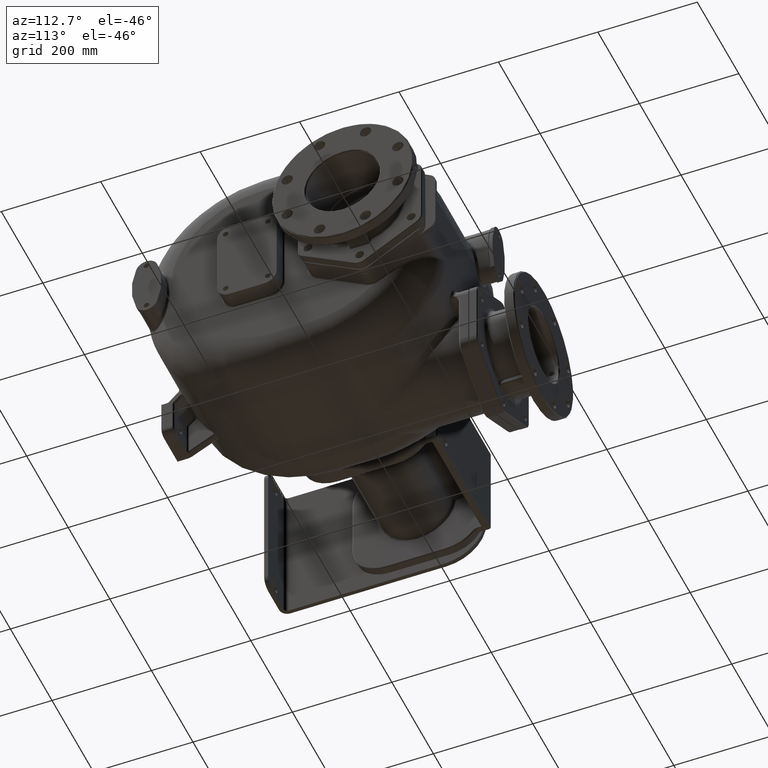
[diagram: clean part render]
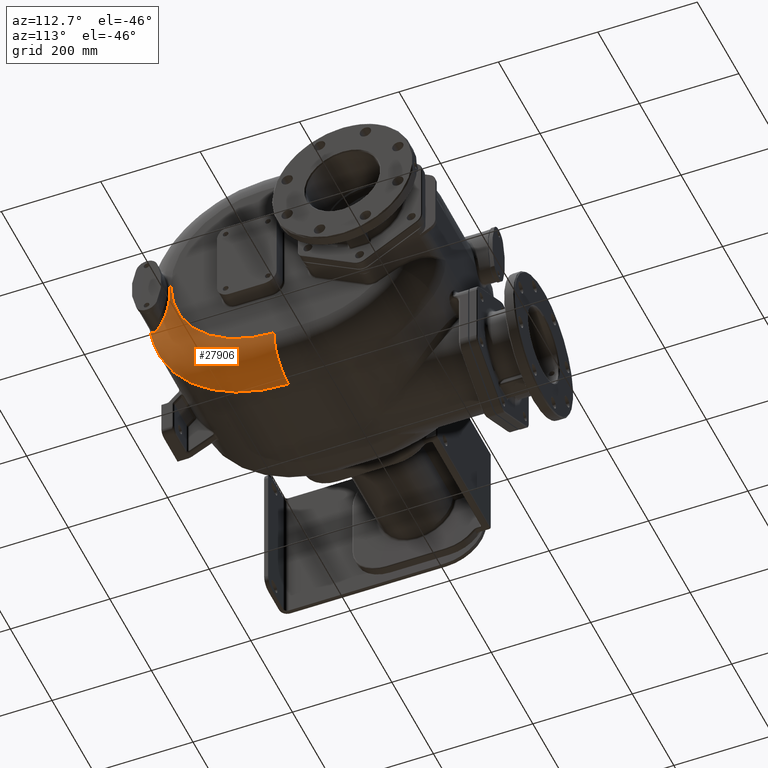
[diagram: same view with one face highlighted and labeled with its STEP entity id]
A machine part, auxiliary view. The second image highlights one B-rep face of the part: STEP entity #27906.
In plain terms, the highlighted toroidal blend (fillet) surface has major radius 207 mm and minor (blend) radius 70 mm.
Its self-contained STEP definition (entity closure, byte-faithful):
#1087=CARTESIAN_POINT('',(1.2E2,2.93E2,-1.3E1));
#1088=DIRECTION('',(1.E0,0.E0,0.E0));
#1089=DIRECTION('',(0.E0,-1.E0,0.E0));
#1090=AXIS2_PLACEMENT_3D('',#1087,#1088,#1089);
#3254=CARTESIAN_POINT('',(1.436302674868E2,2.010910185387E1,-1.3E1));
#3255=CARTESIAN_POINT('',(1.434774850535E2,2.005430937251E1,-1.366220013647E1));
#3256=CARTESIAN_POINT('',(1.431825362065E2,1.995454968476E1,-1.498000676323E1));
#3257=CARTESIAN_POINT('',(1.427718428452E2,1.983316179506E1,-1.693759887206E1));
#3258=CARTESIAN_POINT('',(1.423935799865E2,1.973907631960E1,-1.887212816799E1));
#3259=CARTESIAN_POINT('',(1.420480140452E2,1.967116820238E1,-2.078093430659E1));
#3260=CARTESIAN_POINT('',(1.417354892376E2,1.962833029918E1,-2.266116148232E1));
#3261=CARTESIAN_POINT('',(1.414560493564E2,1.960933981310E1,-2.450988102760E1));
#3262=CARTESIAN_POINT('',(1.412095348435E2,1.961295038040E1,-2.632515984223E1));
#3263=CARTESIAN_POINT('',(1.409955728968E2,1.963792320956E1,-2.810591690151E1));
#3264=CARTESIAN_POINT('',(1.408135763286E2,1.968298093355E1,-2.985079668782E1));
#3265=CARTESIAN_POINT('',(1.406627491059E2,1.974699251748E1,-3.156095532692E1));
#3266=CARTESIAN_POINT('',(1.405423228502E2,1.982896504002E1,-3.323785880910E1));
#3267=CARTESIAN_POINT('',(1.404514990176E2,1.992800933776E1,-3.488312068189E1));
#3268=CARTESIAN_POINT('',(1.403893914088E2,2.004336117405E1,-3.649894776881E1));
#3269=CARTESIAN_POINT('',(1.403553411225E2,2.017444379586E1,-3.808764115690E1));
#3270=CARTESIAN_POINT('',(1.403487197975E2,2.032076303327E1,-3.965118588585E1));
#3271=CARTESIAN_POINT('',(1.403689258024E2,2.048189644560E1,-4.119130408119E1));
#3272=CARTESIAN_POINT('',(1.404155267991E2,2.065756839790E1,-4.270984505326E1));
#3273=CARTESIAN_POINT('',(1.404880140612E2,2.084755266888E1,-4.420858582751E1));
#3274=CARTESIAN_POINT('',(1.405860575922E2,2.105176072759E1,-4.568935961185E1));
#3275=CARTESIAN_POINT('',(1.407094408666E2,2.127020102824E1,-4.715387870620E1));
#3276=CARTESIAN_POINT('',(1.408578275532E2,2.150285293162E1,-4.860337527423E1));
#3277=CARTESIAN_POINT('',(1.410311048675E2,2.174984325472E1,-5.003921088386E1));
#3278=CARTESIAN_POINT('',(1.412290961446E2,2.201128674224E1,-5.146235185554E1));
#3279=CARTESIAN_POINT('',(1.414515955290E2,2.228730171473E1,-5.287349863229E1));
#3280=CARTESIAN_POINT('',(1.416985613134E2,2.257811802714E1,-5.427341460296E1));
#3281=CARTESIAN_POINT('',(1.419697538119E2,2.288385255599E1,-5.566224239431E1));
#3282=CARTESIAN_POINT('',(1.422649904259E2,2.320467344718E1,-5.704011873126E1));
#3283=CARTESIAN_POINT('',(1.425840888301E2,2.354075408442E1,-5.840699369502E1));
#3284=CARTESIAN_POINT('',(1.429266641897E2,2.389213276425E1,-5.976227508438E1));
#3285=CARTESIAN_POINT('',(1.432923959277E2,2.425891060931E1,-6.110551274163E1));
#3286=CARTESIAN_POINT('',(1.436808171377E2,2.464107772312E1,-6.243583439287E1));
#3287=CARTESIAN_POINT('',(1.440913300373E2,2.503853459744E1,-6.375212962854E1));
#3288=CARTESIAN_POINT('',(1.445233290144E2,2.545119373283E1,-6.505338282864E1));
#3289=CARTESIAN_POINT('',(1.449760297220E2,2.587881128043E1,-6.633815952179E1));
#3290=CARTESIAN_POINT('',(1.454485727397E2,2.632110111494E1,-6.760506358313E1));
#3291=CARTESIAN_POINT('',(1.459400257101E2,2.677772171144E1,-6.885268240407E1));
#3292=CARTESIAN_POINT('',(1.464493537354E2,2.724822311748E1,-7.007942798012E1));
#3293=CARTESIAN_POINT('',(1.469754384533E2,2.773210757139E1,-7.128382846454E1));
#3294=CARTESIAN_POINT('',(1.475171253484E2,2.822882256818E1,-7.246441996229E1));
#3295=CARTESIAN_POINT('',(1.480732247831E2,2.873776462988E1,-7.361977868036E1));
#3296=CARTESIAN_POINT('',(1.486424525525E2,2.925826208642E1,-7.474858136281E1));
#3297=CARTESIAN_POINT('',(1.492236009880E2,2.978965841172E1,-7.584963861356E1));
#3298=CARTESIAN_POINT('',(1.498154181508E2,3.033124979881E1,-7.692185502938E1));
#3299=CARTESIAN_POINT('',(1.504166175639E2,3.088229332147E1,-7.796426119160E1));
#3300=CARTESIAN_POINT('',(1.510260606654E2,3.144211730815E1,-7.897608532821E1));
#3301=CARTESIAN_POINT('',(1.516425300229E2,3.200998211983E1,-7.995662812854E1));
#3302=CARTESIAN_POINT('',(1.522648840287E2,3.258518253080E1,-8.090536606344E1));
#3303=CARTESIAN_POINT('',(1.528921038113E2,3.316707642804E1,-8.182193052124E1));
#3304=CARTESIAN_POINT('',(1.535231017265E2,3.375496275686E1,-8.270602491109E1));
#3305=CARTESIAN_POINT('',(1.541569416224E2,3.434823036648E1,-8.355752502583E1));
#3306=CARTESIAN_POINT('',(1.547927438420E2,3.494629158608E1,-8.437639275728E1));
#3307=CARTESIAN_POINT('',(1.554296080860E2,3.554853796984E1,-8.516267803704E1));
#3308=CARTESIAN_POINT('',(1.560667917329E2,3.615445656001E1,-8.591654095740E1));
#3309=CARTESIAN_POINT('',(1.567035634E2,3.676353298330E1,-8.663819553894E1));
#3310=CARTESIAN_POINT('',(1.573392173551E2,3.737526762586E1,-8.732793718380E1));
#3311=CARTESIAN_POINT('',(1.579731633683E2,3.798922643833E1,-8.798610163125E1));
#3312=CARTESIAN_POINT('',(1.586048167459E2,3.860497705131E1,-8.861307629853E1));
#3313=CARTESIAN_POINT('',(1.592336314502E2,3.922210936668E1,-8.920929427999E1));
#3314=CARTESIAN_POINT('',(1.598591312617E2,3.984024685438E1,-8.977518791346E1));
#3315=CARTESIAN_POINT('',(1.604808559240E2,4.045902749877E1,-9.031124219601E1));
#3316=CARTESIAN_POINT('',(1.610983733216E2,4.107809867245E1,-9.081794686399E1));
#3317=CARTESIAN_POINT('',(1.617112937749E2,4.169712485870E1,-9.129578174706E1));
#3318=CARTESIAN_POINT('',(1.623192528798E2,4.231579432318E1,-9.174527339677E1));
#3319=CARTESIAN_POINT('',(1.629218948091E2,4.293378321734E1,-9.216692017398E1));
#3320=CARTESIAN_POINT('',(1.635188958478E2,4.355078310876E1,-9.256122041189E1));
#3321=CARTESIAN_POINT('',(1.641099597727E2,4.416650961675E1,-9.292870486295E1));
#3322=CARTESIAN_POINT('',(1.646947924708E2,4.478065934829E1,-9.326986724422E1));
#3323=CARTESIAN_POINT('',(1.652731346525E2,4.539295418955E1,-9.358521566449E1));
#3324=CARTESIAN_POINT('',(1.658447485281E2,4.600313057963E1,-9.387526780821E1));
#3325=CARTESIAN_POINT('',(1.664093755867E2,4.661088369059E1,-9.414049906933E1));
#3326=CARTESIAN_POINT('',(1.669667938533E2,4.721593949899E1,-9.438140718207E1));
#3327=CARTESIAN_POINT('',(1.675168109958E2,4.781804415433E1,-9.459849044408E1));
#3328=CARTESIAN_POINT('',(1.680592591064E2,4.841695698371E1,-9.479223758398E1));
#3329=CARTESIAN_POINT('',(1.685940185990E2,4.901248386920E1,-9.496314885163E1));
#3330=CARTESIAN_POINT('',(1.691209329544E2,4.960437758898E1,-9.511168953345E1));
#3331=CARTESIAN_POINT('',(1.696398067770E2,5.019233691300E1,-9.523831154712E1));
#3332=CARTESIAN_POINT('',(1.701504801106E2,5.077608942831E1,-9.534347723230E1));
#3333=CARTESIAN_POINT('',(1.706528929816E2,5.135546664387E1,-9.542765954043E1));
#3334=CARTESIAN_POINT('',(1.711470510565E2,5.193037230188E1,-9.549133076923E1));
#3335=CARTESIAN_POINT('',(1.716329888008E2,5.250073603613E1,-9.553492987584E1));
#3336=CARTESIAN_POINT('',(1.721107231778E2,5.306646680016E1,-9.555888241510E1));
#3337=CARTESIAN_POINT('',(1.724237839111E2,5.344050499518E1,-9.556202232890E1));
#3338=CARTESIAN_POINT('',(1.725789568150E2,5.362672378307E1,-9.556044758948E1));
#3340=CARTESIAN_POINT('',(1.725789568150E2,5.362672378307E1,-9.556044758948E1));
#3341=CARTESIAN_POINT('',(1.727350139299E2,5.381400456774E1,-9.555886349032E1));
#3342=CARTESIAN_POINT('',(1.730446722469E2,5.418731818376E1,-9.554939675599E1));
#3343=CARTESIAN_POINT('',(1.735018132117E2,5.474349742809E1,-9.551660725324E1));
#3344=CARTESIAN_POINT('',(1.739515268109E2,5.529569494591E1,-9.546550867055E1));
#3345=CARTESIAN_POINT('',(1.743937862965E2,5.584377782499E1,-9.539636006013E1));
#3346=CARTESIAN_POINT('',(1.748285745199E2,5.638763666371E1,-9.530945669196E1));
#3347=CARTESIAN_POINT('',(1.752558841488E2,5.692715750627E1,-9.520504673180E1));
#3348=CARTESIAN_POINT('',(1.756757755286E2,5.746230972161E1,-9.508335276056E1));
#3349=CARTESIAN_POINT('',(1.760884359438E2,5.799324212627E1,-9.494457605348E1));
#3350=CARTESIAN_POINT('',(1.764940445325E2,5.852008186013E1,-9.478882634824E1));
#3351=CARTESIAN_POINT('',(1.768927622035E2,5.904294761147E1,-9.461620682175E1));
#3352=CARTESIAN_POINT('',(1.772847254014E2,5.956194100346E1,-9.442682164268E1));
#3353=CARTESIAN_POINT('',(1.776700685394E2,6.007714562496E1,-9.422068414382E1));
#3354=CARTESIAN_POINT('',(1.780489585343E2,6.058871194890E1,-9.399780283957E1));
#3355=CARTESIAN_POINT('',(1.784215753429E2,6.109681769564E1,-9.375813775507E1));
#3356=CARTESIAN_POINT('',(1.787880777373E2,6.160160142933E1,-9.350156245817E1));
#3357=CARTESIAN_POINT('',(1.791486434146E2,6.210325956627E1,-9.322795620793E1));
#3358=CARTESIAN_POINT('',(1.795034377932E2,6.260197425415E1,-9.293713350050E1));
#3359=CARTESIAN_POINT('',(1.798526017492E2,6.309788854100E1,-9.262883836702E1));
#3360=CARTESIAN_POINT('',(1.801963231266E2,6.359124756215E1,-9.230278921470E1));
#3361=CARTESIAN_POINT('',(1.805347596996E2,6.408225185796E1,-9.195862520124E1));
#3362=CARTESIAN_POINT('',(1.808680422643E2,6.457106703072E1,-9.159593068811E1));
#3363=CARTESIAN_POINT('',(1.811963166926E2,6.505791523135E1,-9.121427223013E1));
#3364=CARTESIAN_POINT('',(1.815196698463E2,6.554292537453E1,-9.081316543099E1));
#3365=CARTESIAN_POINT('',(1.818382272164E2,6.602629488697E1,-9.039201272465E1));
#3366=CARTESIAN_POINT('',(1.821522199922E2,6.650841623172E1,-8.995003105512E1));
#3367=CARTESIAN_POINT('',(1.824618521766E2,6.698964649979E1,-8.948628570358E1));
#3368=CARTESIAN_POINT('',(1.827670024875E2,6.746985908723E1,-8.900024628012E1));
#3369=CARTESIAN_POINT('',(1.830672650614E2,6.794848018076E1,-8.849189814029E1));
#3370=CARTESIAN_POINT('',(1.833622988575E2,6.842499915872E1,-8.796116139715E1));
#3371=CARTESIAN_POINT('',(1.836517617436E2,6.889889200780E1,-8.740807159432E1));
#3372=CARTESIAN_POINT('',(1.839353409692E2,6.936966653050E1,-8.683271632691E1));
#3373=CARTESIAN_POINT('',(1.842127115066E2,6.983676972728E1,-8.623528977257E1));
#3374=CARTESIAN_POINT('',(1.844840742461E2,7.030053568280E1,-8.561490618725E1));
#3375=CARTESIAN_POINT('',(1.847496074721E2,7.076129111354E1,-8.497057074342E1));
#3376=CARTESIAN_POINT('',(1.850094128822E2,7.121924157942E1,-8.430129503497E1));
#3377=CARTESIAN_POINT('',(1.852634922388E2,7.167443923669E1,-8.360625328288E1));
#3378=CARTESIAN_POINT('',(1.855118150402E2,7.212689042691E1,-8.288463918553E1));
#3379=CARTESIAN_POINT('',(1.857543339274E2,7.257656624395E1,-8.213558923808E1));
#3380=CARTESIAN_POINT('',(1.859910257997E2,7.302349329395E1,-8.135808974340E1));
#3381=CARTESIAN_POINT('',(1.862218258944E2,7.346763495344E1,-8.055118848731E1));
#3382=CARTESIAN_POINT('',(1.864466444004E2,7.390889506211E1,-7.971389844435E1));
#3383=CARTESIAN_POINT('',(1.866653785050E2,7.434715298024E1,-7.884521341571E1));
#3384=CARTESIAN_POINT('',(1.868779042184E2,7.478225502135E1,-7.794419112414E1));
#3385=CARTESIAN_POINT('',(1.870840759417E2,7.521397276900E1,-7.700986568928E1));
#3386=CARTESIAN_POINT('',(1.872837404649E2,7.564204981646E1,-7.604128900352E1));
#3387=CARTESIAN_POINT('',(1.874767408712E2,7.606622108088E1,-7.503757905163E1));
#3388=CARTESIAN_POINT('',(1.876628935371E2,7.648610377101E1,-7.399789623548E1));
#3389=CARTESIAN_POINT('',(1.878420207092E2,7.690130052635E1,-7.292146111973E1));
#3390=CARTESIAN_POINT('',(1.880139573829E2,7.731142171129E1,-7.180756180990E1));
#3391=CARTESIAN_POINT('',(1.881785134371E2,7.771592113234E1,-7.065561427347E1));
#3392=CARTESIAN_POINT('',(1.883355288235E2,7.811428050712E1,-6.946510073636E1));
#3393=CARTESIAN_POINT('',(1.884848658402E2,7.850598121651E1,-6.823559489974E1));
#3394=CARTESIAN_POINT('',(1.886263739616E2,7.889033364932E1,-6.696687938788E1));
#3395=CARTESIAN_POINT('',(1.887599573953E2,7.926672987462E1,-6.565877998683E1));
#3396=CARTESIAN_POINT('',(1.888855463541E2,7.963452965930E1,-6.431126848743E1));
#3397=CARTESIAN_POINT('',(1.890030807167E2,7.999294841519E1,-6.292455993754E1));
#3398=CARTESIAN_POINT('',(1.891125708480E2,8.034132733879E1,-6.149888084092E1));
#3399=CARTESIAN_POINT('',(1.892140533832E2,8.067893148970E1,-6.003467911532E1));
#3400=CARTESIAN_POINT('',(1.893075983181E2,8.100494481433E1,-5.853262322726E1));
#3401=CARTESIAN_POINT('',(1.893933480928E2,8.131869513400E1,-5.699337997522E1));
#3402=CARTESIAN_POINT('',(1.894714713803E2,8.161940242989E1,-5.541788546274E1));
#3403=CARTESIAN_POINT('',(1.895421852645E2,8.190628955869E1,-5.380721592270E1));
#3404=CARTESIAN_POINT('',(1.896057672113E2,8.217870881695E1,-5.216246068246E1));
#3405=CARTESIAN_POINT('',(1.896625163282E2,8.243589011299E1,-5.048503360539E1));
#3406=CARTESIAN_POINT('',(1.897127797879E2,8.267714439532E1,-4.877641240225E1));
#3407=CARTESIAN_POINT('',(1.897569443447E2,8.290187385957E1,-4.703811698054E1));
#3408=CARTESIAN_POINT('',(1.897954145340E2,8.310940650193E1,-4.527179489779E1));
#3409=CARTESIAN_POINT('',(1.898286249935E2,8.329919609505E1,-4.347907374354E1));
#3410=CARTESIAN_POINT('',(1.898570198577E2,8.347071746132E1,-4.166179228230E1));
#3411=CARTESIAN_POINT('',(1.898810429383E2,8.362340535943E1,-3.982211289E1));
#3412=CARTESIAN_POINT('',(1.899011446719E2,8.375684305786E1,-3.796223362599E1));
#3413=CARTESIAN_POINT('',(1.899177660161E2,8.387063576649E1,-3.608400586239E1));
#3414=CARTESIAN_POINT('',(1.899313288404E2,8.396441737142E1,-3.418906898469E1));
#3415=CARTESIAN_POINT('',(1.899422292330E2,8.403791631493E1,-3.227911280355E1));
#3416=CARTESIAN_POINT('',(1.899508266109E2,8.409087143218E1,-3.035592554259E1));
#3417=CARTESIAN_POINT('',(1.899574412007E2,8.412310221532E1,-2.842116518467E1));
#3418=CARTESIAN_POINT('',(1.899623438743E2,8.413446352929E1,-2.647706810013E1));
#3419=CARTESIAN_POINT('',(1.899657453138E2,8.412473380818E1,-2.452914042585E1));
#3420=CARTESIAN_POINT('',(1.899678139783E2,8.409400193597E1,-2.258282638464E1));
#3421=CARTESIAN_POINT('',(1.899686619196E2,8.404237188600E1,-2.064244547391E1));
#3422=CARTESIAN_POINT('',(1.899683379483E2,8.396981962437E1,-1.871065333154E1));
#3423=CARTESIAN_POINT('',(1.899668341842E2,8.387652273391E1,-1.679054190466E1));
#3424=CARTESIAN_POINT('',(1.899640837075E2,8.376268493163E1,-1.488463106395E1));
#3425=CARTESIAN_POINT('',(1.899613408175E2,8.367340558825E1,-1.362643533314E1));
#3426=CARTESIAN_POINT('',(1.899597127545E2,8.362542818423E1,-1.3E1));
#3428=CARTESIAN_POINT('',(1.2E2,8.6E1,-1.3E1));
#3429=DIRECTION('',(0.E0,0.E0,-1.E0));
#3430=DIRECTION('',(1.E0,0.E0,0.E0));
#3431=AXIS2_PLACEMENT_3D('',#3428,#3429,#3430);
#3433=CARTESIAN_POINT('',(1.2E2,8.6E1,-1.3E1));
#3434=DIRECTION('',(0.E0,0.E0,-1.E0));
#3435=DIRECTION('',(3.375752498110E-1,-9.412985449447E-1,0.E0));
#3436=AXIS2_PLACEMENT_3D('',#3433,#3434,#3435);
#4347=CARTESIAN_POINT('',(1.9E2,2.93E2,-1.3E1));
#4348=DIRECTION('',(1.E0,0.E0,0.E0));
#4349=DIRECTION('',(0.E0,-1.E0,0.E0));
#4350=AXIS2_PLACEMENT_3D('',#4347,#4348,#4349);
#6401=CARTESIAN_POINT('',(1.2E2,2.93E2,-2.2E2));
#6402=DIRECTION('',(0.E0,1.E0,0.E0));
#6403=DIRECTION('',(1.E0,0.E0,0.E0));
#6404=AXIS2_PLACEMENT_3D('',#6401,#6402,#6403);
#22072=CARTESIAN_POINT('',(1.2E2,2.93E2,-2.9E2));
#22074=VERTEX_POINT('',#22072);
#22175=CARTESIAN_POINT('',(1.9E2,2.93E2,-2.2E2));
#22177=VERTEX_POINT('',#22175);
#22179=CARTESIAN_POINT('',(1.9E2,8.6E1,-1.3E1));
#22180=VERTEX_POINT('',#22179);
#22181=CARTESIAN_POINT('',(1.2E2,1.6E1,-1.3E1));
#22182=VERTEX_POINT('',#22181);
#22189=VERTEX_POINT('',#3254);
#22190=VERTEX_POINT('',#3338);
#22192=VERTEX_POINT('',#3426);
#27886=CARTESIAN_POINT('',(1.2E2,2.93E2,-1.3E1));
#27887=DIRECTION('',(-1.E0,0.E0,0.E0));
#27888=DIRECTION('',(0.E0,-9.999764887468E-1,6.857255542660E-3));
#27889=AXIS2_PLACEMENT_3D('',#27886,#27887,#27888);
#27890=TOROIDAL_SURFACE('',#27889,2.07E2,7.E1);
#27892=ORIENTED_EDGE('',*,*,#27891,.T.);
#27894=ORIENTED_EDGE('',*,*,#27893,.T.);
#27896=ORIENTED_EDGE('',*,*,#27895,.F.);
#27898=ORIENTED_EDGE('',*,*,#27897,.T.);
#27900=ORIENTED_EDGE('',*,*,#27899,.T.);
#27901=ORIENTED_EDGE('',*,*,#24967,.F.);
#27903=ORIENTED_EDGE('',*,*,#27902,.F.);
#27904=EDGE_LOOP('',(#27892,#27894,#27896,#27898,#27900,#27901,#27903));
#27905=FACE_OUTER_BOUND('',#27904,.F.);
#27906=ADVANCED_FACE('',(#27905),#27890,.T.);
#1091=CIRCLE('',#1090,2.77E2);
#3339=B_SPLINE_CURVE_WITH_KNOTS('',3,(#3254,#3255,#3256,#3257,#3258,#3259,#3260,
#3261,#3262,#3263,#3264,#3265,#3266,#3267,#3268,#3269,#3270,#3271,#3272,#3273,
#3274,#3275,#3276,#3277,#3278,#3279,#3280,#3281,#3282,#3283,#3284,#3285,#3286,
#3287,#3288,#3289,#3290,#3291,#3292,#3293,#3294,#3295,#3296,#3297,#3298,#3299,
#3300,#3301,#3302,#3303,#3304,#3305,#3306,#3307,#3308,#3309,#3310,#3311,#3312,
#3313,#3314,#3315,#3316,#3317,#3318,#3319,#3320,#3321,#3322,#3323,#3324,#3325,
#3326,#3327,#3328,#3329,#3330,#3331,#3332,#3333,#3334,#3335,#3336,#3337,#3338),
.UNSPECIFIED.,.F.,.F.,(4,1,1,1,1,1,1,1,1,1,1,1,1,1,1,1,1,1,1,1,1,1,1,1,1,1,1,1,
1,1,1,1,1,1,1,1,1,1,1,1,1,1,1,1,1,1,1,1,1,1,1,1,1,1,1,1,1,1,1,1,1,1,1,1,1,1,1,1,
1,1,1,1,1,1,1,1,1,1,1,1,1,1,4),(0.E0,1.219512195122E-2,2.439024390244E-2,
3.658536585366E-2,4.878048780488E-2,6.097560975610E-2,7.317073170732E-2,
8.536585365854E-2,9.756097560976E-2,1.097560975610E-1,1.219512195122E-1,
1.341463414634E-1,1.463414634146E-1,1.585365853659E-1,1.707317073171E-1,
1.829268292683E-1,1.951219512195E-1,2.073170731707E-1,2.195121951220E-1,
2.317073170732E-1,2.439024390244E-1,2.560975609756E-1,2.682926829268E-1,
2.804878048780E-1,2.926829268293E-1,3.048780487805E-1,3.170731707317E-1,
3.292682926829E-1,3.414634146341E-1,3.536585365854E-1,3.658536585366E-1,
3.780487804878E-1,3.902439024390E-1,4.024390243902E-1,4.146341463415E-1,
4.268292682927E-1,4.390243902439E-1,4.512195121951E-1,4.634146341463E-1,
4.756097560976E-1,4.878048780488E-1,5.E-1,5.121951219512E-1,5.243902439024E-1,
5.365853658537E-1,5.487804878049E-1,5.609756097561E-1,5.731707317073E-1,
5.853658536585E-1,5.975609756098E-1,6.097560975610E-1,6.219512195122E-1,
6.341463414634E-1,6.463414634146E-1,6.585365853659E-1,6.707317073171E-1,
6.829268292683E-1,6.951219512195E-1,7.073170731707E-1,7.195121951220E-1,
7.317073170732E-1,7.439024390244E-1,7.560975609756E-1,7.682926829268E-1,
7.804878048780E-1,7.926829268293E-1,8.048780487805E-1,8.170731707317E-1,
8.292682926829E-1,8.414634146341E-1,8.536585365854E-1,8.658536585366E-1,
8.780487804878E-1,8.902439024390E-1,9.024390243902E-1,9.146341463415E-1,
9.268292682927E-1,9.390243902439E-1,9.512195121951E-1,9.634146341463E-1,
9.756097560976E-1,9.878048780488E-1,1.E0),.UNSPECIFIED.);
#3427=B_SPLINE_CURVE_WITH_KNOTS('',3,(#3340,#3341,#3342,#3343,#3344,#3345,#3346,
#3347,#3348,#3349,#3350,#3351,#3352,#3353,#3354,#3355,#3356,#3357,#3358,#3359,
#3360,#3361,#3362,#3363,#3364,#3365,#3366,#3367,#3368,#3369,#3370,#3371,#3372,
#3373,#3374,#3375,#3376,#3377,#3378,#3379,#3380,#3381,#3382,#3383,#3384,#3385,
#3386,#3387,#3388,#3389,#3390,#3391,#3392,#3393,#3394,#3395,#3396,#3397,#3398,
#3399,#3400,#3401,#3402,#3403,#3404,#3405,#3406,#3407,#3408,#3409,#3410,#3411,
#3412,#3413,#3414,#3415,#3416,#3417,#3418,#3419,#3420,#3421,#3422,#3423,#3424,
#3425,#3426),.UNSPECIFIED.,.F.,.F.,(4,1,1,1,1,1,1,1,1,1,1,1,1,1,1,1,1,1,1,1,1,1,
1,1,1,1,1,1,1,1,1,1,1,1,1,1,1,1,1,1,1,1,1,1,1,1,1,1,1,1,1,1,1,1,1,1,1,1,1,1,1,1,
1,1,1,1,1,1,1,1,1,1,1,1,1,1,1,1,1,1,1,1,1,1,4),(0.E0,1.190476190476E-2,
2.380952380952E-2,3.571428571429E-2,4.761904761905E-2,5.952380952381E-2,
7.142857142857E-2,8.333333333333E-2,9.523809523810E-2,1.071428571429E-1,
1.190476190476E-1,1.309523809524E-1,1.428571428571E-1,1.547619047619E-1,
1.666666666667E-1,1.785714285714E-1,1.904761904762E-1,2.023809523810E-1,
2.142857142857E-1,2.261904761905E-1,2.380952380952E-1,2.5E-1,2.619047619048E-1,
2.738095238095E-1,2.857142857143E-1,2.976190476190E-1,3.095238095238E-1,
3.214285714286E-1,3.333333333333E-1,3.452380952381E-1,3.571428571429E-1,
3.690476190476E-1,3.809523809524E-1,3.928571428571E-1,4.047619047619E-1,
4.166666666667E-1,4.285714285714E-1,4.404761904762E-1,4.523809523810E-1,
4.642857142857E-1,4.761904761905E-1,4.880952380952E-1,5.E-1,5.119047619048E-1,
5.238095238095E-1,5.357142857143E-1,5.476190476190E-1,5.595238095238E-1,
5.714285714286E-1,5.833333333333E-1,5.952380952381E-1,6.071428571429E-1,
6.190476190476E-1,6.309523809524E-1,6.428571428571E-1,6.547619047619E-1,
6.666666666667E-1,6.785714285714E-1,6.904761904762E-1,7.023809523810E-1,
7.142857142857E-1,7.261904761905E-1,7.380952380952E-1,7.5E-1,7.619047619048E-1,
7.738095238095E-1,7.857142857143E-1,7.976190476190E-1,8.095238095238E-1,
8.214285714286E-1,8.333333333333E-1,8.452380952381E-1,8.571428571429E-1,
8.690476190476E-1,8.809523809524E-1,8.928571428571E-1,9.047619047619E-1,
9.166666666667E-1,9.285714285714E-1,9.404761904762E-1,9.523809523810E-1,
9.642857142857E-1,9.761904761905E-1,9.880952380952E-1,1.E0),.UNSPECIFIED.);
#3432=CIRCLE('',#3431,7.E1);
#3437=CIRCLE('',#3436,7.E1);
#4351=CIRCLE('',#4350,2.07E2);
#6405=CIRCLE('',#6404,7.E1);
#24967=EDGE_CURVE('',#22182,#22074,#1091,.T.);
#27891=EDGE_CURVE('',#22189,#22190,#3339,.T.);
#27893=EDGE_CURVE('',#22190,#22192,#3427,.T.);
#27895=EDGE_CURVE('',#22180,#22192,#3432,.T.);
#27897=EDGE_CURVE('',#22180,#22177,#4351,.T.);
#27899=EDGE_CURVE('',#22177,#22074,#6405,.T.);
#27902=EDGE_CURVE('',#22189,#22182,#3437,.T.);